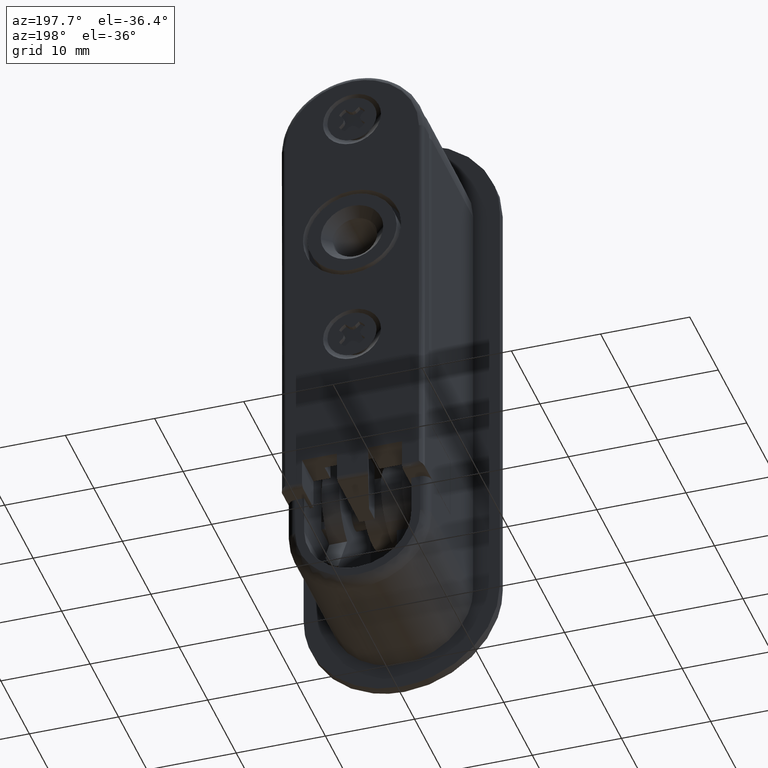
[diagram: clean part render]
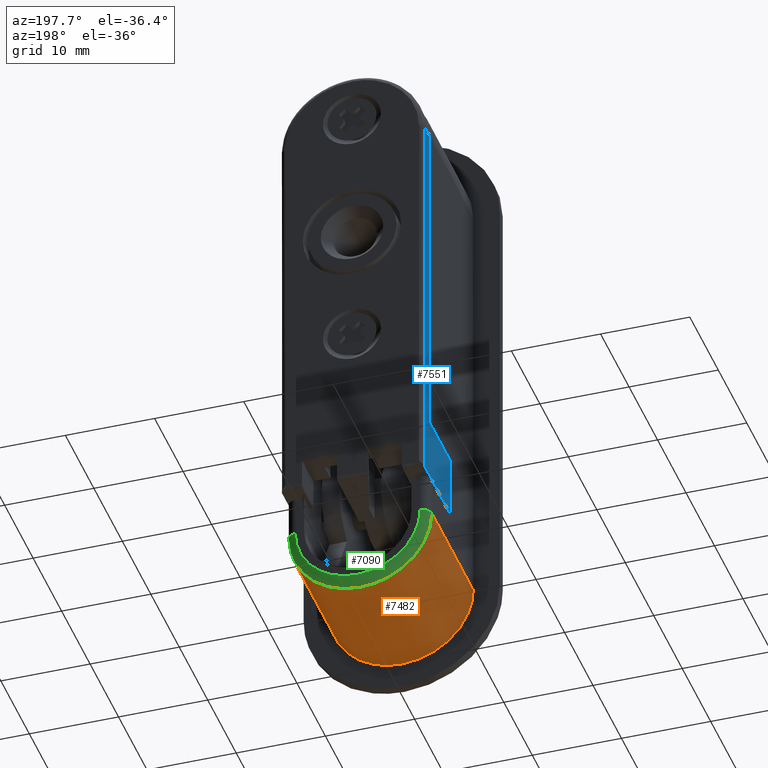
[diagram: same view with three faces highlighted in distinct colors, each labeled with its STEP entity id]
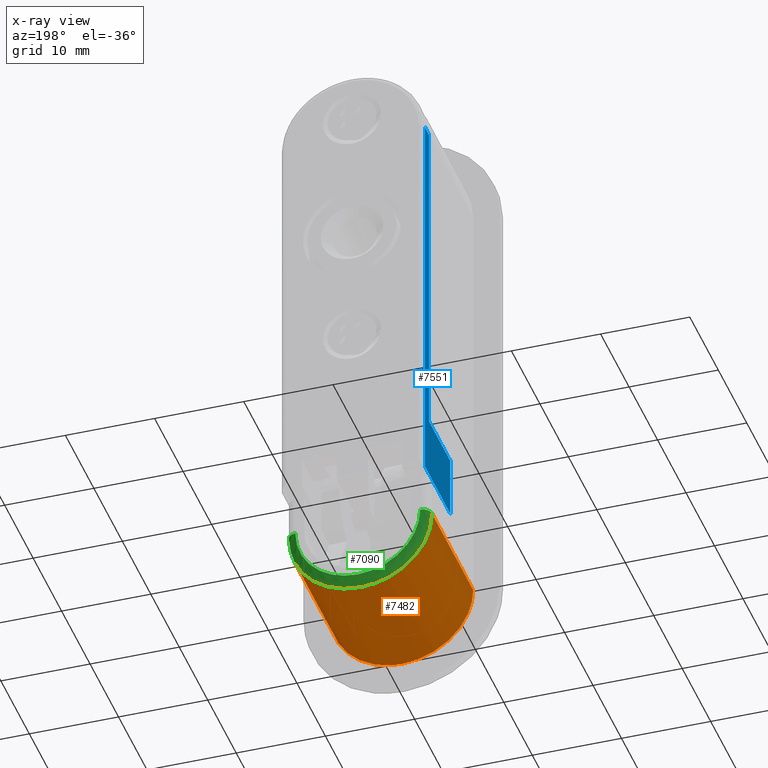
[diagram: x-ray of the same camera — body ghosted, the three highlighted faces saturated]
A machine part, auxiliary view with three faces highlighted in distinct colors.
The next image is the same camera in x-ray (body ghosted, the three faces saturated) — at least one of them is partly hidden behind the body in this view.
Their STEP definitions:

[orange] entity #7482 — the highlighted face is a freeform B-spline surface patch.
#4938=CARTESIAN_POINT('',(7.999999999999770,8.999999999976470,-7.999999999989909));
#4939=VERTEX_POINT('',#4938);
#5870=CARTESIAN_POINT('',(7.999999999999769,-5.499999999979410,-7.999999999989909));
#5871=VERTEX_POINT('',#5870);
#5877=CARTESIAN_POINT('',(7.999999999999770,8.999999999976470,-7.999999999989909));
#5878=CARTESIAN_POINT('',(7.999999999999769,-5.499999999979410,-7.999999999989909));
#5879=QUASI_UNIFORM_CURVE('',1,(#5877,#5878),.UNSPECIFIED.,.F.,.U.);
#5880=EDGE_CURVE('',#4939,#5871,#5879,.T.);
#5941=CARTESIAN_POINT('',(-8.000000000002562,-5.499999999979409,-7.999999999989509));
#5942=VERTEX_POINT('',#5941);
#5948=CARTESIAN_POINT('',(2.555263E-009,-5.499999999979409,-15.999999999989679));
#5949=VERTEX_POINT('',#5948);
#5950=CARTESIAN_POINT('',(2.555263E-009,-5.499999999979409,-15.999999999989679));
#5951=CARTESIAN_POINT('',(-0.392696191003880,-5.499999999979417,-16.000018228220039));
#5952=CARTESIAN_POINT('',(-1.243542607495554,-5.499999999979405,-15.937241482479211));
#5953=CARTESIAN_POINT('',(-2.457915600246298,-5.499999999979410,-15.648877386963550));
#5954=CARTESIAN_POINT('',(-3.549281570217420,-5.499999999979408,-15.196766912245160));
#5955=CARTESIAN_POINT('',(-4.625728468280585,-5.499999999979386,-14.569455354418650));
#5956=CARTESIAN_POINT('',(-5.642474683520280,-5.499999999979421,-13.735040012082051));
#5957=CARTESIAN_POINT('',(-6.636414121436449,-5.499999999979445,-12.553809168403490));
#5958=CARTESIAN_POINT('',(-7.310168075535778,-5.499999999979334,-11.347253619508290));
#5959=CARTESIAN_POINT('',(-7.853148609524454,-5.499999999979520,-9.799740238691614));
#5960=CARTESIAN_POINT('',(-8.000282860848834,-5.499999999979337,-8.719984270569936));
#5961=CARTESIAN_POINT('',(-8.000000000002562,-5.499999999979409,-7.999999999989509));
#5962=B_SPLINE_CURVE_WITH_KNOTS('',3,(#5950,#5951,#5952,#5953,#5954,#5955,#5956,#5957,#5958,#5959,#5960,#5961),.UNSPECIFIED.,.F.,.U.,(4,1,1,1,1,1,1,1,1,4),(0.000000021317030,1.178095038869616,2.552560406980430,3.730670184793175,4.712433635873985,6.283224744091799,7.657664915824316,9.326661496953975,10.406599643651051,12.566449464443391),.UNSPECIFIED.);
#5963=EDGE_CURVE('',#5949,#5942,#5962,.T.);
#5965=CARTESIAN_POINT('',(7.999999999999769,-5.499999999979410,-7.999999999989909));
#5966=CARTESIAN_POINT('',(8.000270937337850,-5.499999999979405,-8.719982732890124));
#5967=CARTESIAN_POINT('',(7.866554428511551,-5.499999999979419,-9.701587383563755));
#5968=CARTESIAN_POINT('',(7.434832306560348,-5.499999999979407,-11.008231206909681));
#5969=CARTESIAN_POINT('',(6.957861731212261,-5.499999999979404,-12.016810585790260));
#5970=CARTESIAN_POINT('',(6.326061762850588,-5.499999999979439,-12.937664944688599));
#5971=CARTESIAN_POINT('',(5.577942118721508,-5.499999999979367,-13.763063574412760));
#5972=CARTESIAN_POINT('',(4.733175133574169,-5.499999999979422,-14.491802728335770));
#5973=CARTESIAN_POINT('',(3.558720420921381,-5.499999999979542,-15.215518496667841));
#5974=CARTESIAN_POINT('',(1.963385233993530,-5.499999999979280,-15.830945930178350));
#5975=CARTESIAN_POINT('',(0.719971252035029,-5.499999999979463,-16.000255116828850));
#5976=CARTESIAN_POINT('',(2.555263E-009,-5.499999999979409,-15.999999999989679));
#5977=B_SPLINE_CURVE_WITH_KNOTS('',3,(#5965,#5966,#5967,#5968,#5969,#5970,#5971,#5972,#5973,#5974,#5975,#5976),.UNSPECIFIED.,.F.,.U.,(4,1,1,1,1,1,1,1,1,4),(0.000000021317176,2.159849362063106,2.945260475573445,4.123367280659872,5.497841693797952,6.283224740226188,7.461309067020115,8.835778345080653,10.406599641264201,12.566449461561209),.UNSPECIFIED.);
#5978=EDGE_CURVE('',#5871,#5949,#5977,.T.);
#7008=CARTESIAN_POINT('',(-8.000000000002562,8.999999999976470,-7.999999999989509));
#7009=VERTEX_POINT('',#7008);
#7053=CARTESIAN_POINT('',(-2.555922E-009,8.999999999976470,-15.999999999989690));
#7054=VERTEX_POINT('',#7053);
#7055=CARTESIAN_POINT('',(-2.555922E-009,8.999999999976470,-15.999999999989690));
#7056=CARTESIAN_POINT('',(0.654512090067644,8.999999999976481,-16.000174078437549));
#7057=CARTESIAN_POINT('',(1.767069419562451,8.999999999976442,-15.862653088428351));
#7058=CARTESIAN_POINT('',(3.257924133621903,8.999999999976506,-15.349749274974339));
#7059=CARTESIAN_POINT('',(4.466498220475898,8.999999999976438,-14.684571944558771));
#7060=CARTESIAN_POINT('',(5.440934746104221,8.999999999976406,-13.904631817041251));
#7061=CARTESIAN_POINT('',(6.288900308331958,8.999999999976556,-12.991838821747640));
#7062=CARTESIAN_POINT('',(7.013619937785534,8.999999999976414,-11.935565945968520));
#7063=CARTESIAN_POINT('',(7.553686107653793,8.999999999976522,-10.737068009844300));
#7064=CARTESIAN_POINT('',(7.912921371653288,8.999999999976387,-9.407141701943592));
#7065=CARTESIAN_POINT('',(8.000074219070728,8.999999999976554,-8.523601867772891));
#7066=CARTESIAN_POINT('',(7.999999999999770,8.999999999976470,-7.999999999989909));
#7067=B_SPLINE_CURVE_WITH_KNOTS('',3,(#7055,#7056,#7057,#7058,#7059,#7060,#7061,#7062,#7063,#7064,#7065,#7066),.UNSPECIFIED.,.F.,.U.,(4,1,1,1,1,1,1,1,1,4),(0.000000021319105,1.963494905487609,3.337965809458085,4.712433635874604,6.086880554710028,7.068604226843618,8.443074571864807,9.915719064153507,10.995651818286920,12.566449464441980),.UNSPECIFIED.);
#7068=EDGE_CURVE('',#7054,#4939,#7067,.T.);
#7070=CARTESIAN_POINT('',(-8.000000000002562,8.999999999976470,-7.999999999989509));
#7071=CARTESIAN_POINT('',(-8.000017497024173,8.999999999976488,-8.392695526102104));
#7072=CARTESIAN_POINT('',(-7.937242066036826,8.999999999976426,-9.243543083804678));
#7073=CARTESIAN_POINT('',(-7.648877189230562,8.999999999976527,-10.457915716563420));
#7074=CARTESIAN_POINT('',(-7.196766332365496,8.999999999976422,-11.549280121375981));
#7075=CARTESIAN_POINT('',(-6.569459149769776,8.999999999976485,-12.625735991429231));
#7076=CARTESIAN_POINT('',(-5.776751480957482,8.999999999976525,-13.591618331793439));
#7077=CARTESIAN_POINT('',(-4.708327436650913,8.999999999976453,-14.513232684442061));
#7078=CARTESIAN_POINT('',(-3.416513935862581,8.999999999976412,-15.298481649348410));
#7079=CARTESIAN_POINT('',(-1.799851941057517,8.999999999976469,-15.865715684617101));
#7080=CARTESIAN_POINT('',(-0.589052077993753,8.999999999976481,-16.000084266143158));
#7081=CARTESIAN_POINT('',(-2.555922E-009,8.999999999976470,-15.999999999989690));
#7082=B_SPLINE_CURVE_WITH_KNOTS('',3,(#7070,#7071,#7072,#7073,#7074,#7075,#7076,#7077,#7078,#7079,#7080,#7081),.UNSPECIFIED.,.F.,.U.,(4,1,1,1,1,1,1,1,1,4),(0.000000021314655,1.178095038597133,2.552560406393168,3.730670183936610,4.712433634792197,6.283224740227682,7.461309067020798,8.933955149311718,10.799293413855599,12.566449461562661),.UNSPECIFIED.);
#7083=EDGE_CURVE('',#7009,#7054,#7082,.T.);
#7452=CARTESIAN_POINT('',(7.997258599804225,9.362499999975368,-7.790584413526918));
#7453=CARTESIAN_POINT('',(7.997258599804225,-5.871562499978279,-7.790584413526918));
#7454=CARTESIAN_POINT('',(8.216016975354119,9.362499999975368,-16.144629734097066));
#7455=CARTESIAN_POINT('',(8.216016975354119,-5.871562499978278,-16.144629734097066));
#7456=CARTESIAN_POINT('',(-0.139619251498250,9.362499999975368,-15.998781561240801));
#7457=CARTESIAN_POINT('',(-0.139619251498251,-5.871562499978278,-15.998781561240801));
#7458=CARTESIAN_POINT('',(-8.495255478350620,9.362499999975368,-15.852933388384539));
#7459=CARTESIAN_POINT('',(-8.495255478350620,-5.871562499978277,-15.852933388384539));
#7460=CARTESIAN_POINT('',(-7.985078387374701,9.362499999975368,-7.511611683711082));
#7461=CARTESIAN_POINT('',(-7.985078387374702,-5.871562499978277,-7.511611683711082));
#7469=(BOUNDED_SURFACE()B_SPLINE_SURFACE(1,2,((#7452,#7454,#7456,#7458,#7460),(#7453,#7455,#7457,#7459,#7461)),.UNSPECIFIED.,.F.,.F.,.U.)B_SPLINE_SURFACE_WITH_KNOTS((2,2),(3,2,3),(0.0,15.234062499953650),(0.0,13.665662648534081,27.331325297068162),.UNSPECIFIED.)GEOMETRIC_REPRESENTATION_ITEM()RATIONAL_B_SPLINE_SURFACE(((1.0,0.691513055782269,1.0,0.691513055782269,1.0),(1.0,0.691513055782269,1.0,0.691513055782269,1.0)))REPRESENTATION_ITEM('')SURFACE());
#7470=CARTESIAN_POINT('',(-8.000000000002562,8.999999999976470,-7.999999999989509));
#7471=CARTESIAN_POINT('',(-8.000000000002562,-5.499999999979409,-7.999999999989509));
#7472=QUASI_UNIFORM_CURVE('',1,(#7470,#7471),.UNSPECIFIED.,.F.,.U.);
#7473=EDGE_CURVE('',#7009,#5942,#7472,.T.);
#7474=ORIENTED_EDGE('',*,*,#7473,.F.);
#7475=ORIENTED_EDGE('',*,*,#7083,.T.);
#7476=ORIENTED_EDGE('',*,*,#7068,.T.);
#7477=ORIENTED_EDGE('',*,*,#5880,.T.);
#7478=ORIENTED_EDGE('',*,*,#5978,.T.);
#7479=ORIENTED_EDGE('',*,*,#5963,.T.);
#7480=EDGE_LOOP('',(#7474,#7475,#7476,#7477,#7478,#7479));
#7481=FACE_OUTER_BOUND('',#7480,.T.);
#7482=ADVANCED_FACE('',(#7481),#7469,.T.);

[blue] entity #7551 — the highlighted face is a freeform B-spline surface patch.
#6827=CARTESIAN_POINT('',(-8.000000000002331,11.500000000049241,-3.500000000459210));
#6828=VERTEX_POINT('',#6827);
#6905=CARTESIAN_POINT('',(-7.999999999999768,11.500000000049241,41.500000000014012));
#6906=VERTEX_POINT('',#6905);
#6971=CARTESIAN_POINT('',(-7.999999999999768,11.500000000049241,41.500000000014012));
#6972=CARTESIAN_POINT('',(-8.000000000002331,11.500000000049241,-3.500000000459210));
#6973=QUASI_UNIFORM_CURVE('',1,(#6971,#6972),.UNSPECIFIED.,.F.,.U.);
#6974=EDGE_CURVE('',#6906,#6828,#6973,.T.);
#7288=CARTESIAN_POINT('',(-7.999999999999560,2.549999999976480,3.499999999487161));
#7289=VERTEX_POINT('',#7288);
#7290=CARTESIAN_POINT('',(-7.999999999999559,9.999999999976490,3.499999999487161));
#7291=VERTEX_POINT('',#7290);
#7292=CARTESIAN_POINT('',(-7.999999999999560,2.549999999976480,3.499999999487161));
#7293=CARTESIAN_POINT('',(-7.999999999999559,9.999999999976490,3.499999999487161));
#7294=QUASI_UNIFORM_CURVE('',1,(#7292,#7293),.UNSPECIFIED.,.F.,.U.);
#7295=EDGE_CURVE('',#7289,#7291,#7294,.T.);
#7389=CARTESIAN_POINT('',(-7.999999999999569,9.999999999976490,41.500000000019249));
#7390=VERTEX_POINT('',#7389);
#7406=CARTESIAN_POINT('',(-7.999999999999559,9.999999999976490,3.499999999487161));
#7407=CARTESIAN_POINT('',(-7.999999999999569,9.999999999976490,41.500000000019249));
#7408=QUASI_UNIFORM_CURVE('',1,(#7406,#7407),.UNSPECIFIED.,.F.,.U.);
#7409=EDGE_CURVE('',#7291,#7390,#7408,.T.);
#7433=CARTESIAN_POINT('',(-7.999999999999560,2.549999999976480,-3.500000000510030));
#7434=VERTEX_POINT('',#7433);
#7440=CARTESIAN_POINT('',(-8.000000000002331,11.500000000049241,-3.500000000459210));
#7441=CARTESIAN_POINT('',(-7.999999999999560,2.549999999976480,-3.500000000510030));
#7442=QUASI_UNIFORM_CURVE('',1,(#7440,#7441),.UNSPECIFIED.,.F.,.U.);
#7443=EDGE_CURVE('',#6828,#7434,#7442,.T.);
#7524=CARTESIAN_POINT('',(-7.999999999999768,11.500000000049241,41.500000000014012));
#7525=CARTESIAN_POINT('',(-7.999999999999569,9.999999999976490,41.500000000019249));
#7526=QUASI_UNIFORM_CURVE('',1,(#7524,#7525),.UNSPECIFIED.,.F.,.U.);
#7527=EDGE_CURVE('',#6906,#7390,#7526,.T.);
#7534=CARTESIAN_POINT('',(-8.0,2.102947517319683,-5.747749913317739));
#7535=CARTESIAN_POINT('',(-8.0,2.102947517319683,43.747751119821011));
#7536=CARTESIAN_POINT('',(-7.999999999999999,11.947052722763750,-5.747749913317739));
#7537=CARTESIAN_POINT('',(-7.999999999999999,11.947052722763750,43.747751119821011));
#7538=B_SPLINE_SURFACE_WITH_KNOTS('',1,1,((#7534,#7536),(#7535,#7537)),.UNSPECIFIED.,.F.,.F.,.U.,(2,2),(2,2),(0.0,49.495501033138751),(0.0,9.844105205444064),.UNSPECIFIED.);
#7539=ORIENTED_EDGE('',*,*,#7527,.F.);
#7540=ORIENTED_EDGE('',*,*,#6974,.T.);
#7541=ORIENTED_EDGE('',*,*,#7443,.T.);
#7542=CARTESIAN_POINT('',(-7.999999999999560,2.549999999976480,-3.500000000510030));
#7543=CARTESIAN_POINT('',(-7.999999999999560,2.549999999976480,3.499999999487161));
#7544=QUASI_UNIFORM_CURVE('',1,(#7542,#7543),.UNSPECIFIED.,.F.,.U.);
#7545=EDGE_CURVE('',#7434,#7289,#7544,.T.);
#7546=ORIENTED_EDGE('',*,*,#7545,.T.);
#7547=ORIENTED_EDGE('',*,*,#7295,.T.);
#7548=ORIENTED_EDGE('',*,*,#7409,.T.);
#7549=EDGE_LOOP('',(#7539,#7540,#7541,#7546,#7547,#7548));
#7550=FACE_OUTER_BOUND('',#7549,.T.);
#7551=ADVANCED_FACE('',(#7550),#7538,.T.);

[green] entity #7090 — the highlighted face is a freeform B-spline surface patch.
#4938=CARTESIAN_POINT('',(7.999999999999770,8.999999999976470,-7.999999999989909));
#4939=VERTEX_POINT('',#4938);
#4945=CARTESIAN_POINT('',(6.999999999999771,9.999999999976490,-7.999999999989899));
#4946=VERTEX_POINT('',#4945);
#4947=CARTESIAN_POINT('',(6.999999999999771,9.999999999976490,-7.999999999989899));
#4948=CARTESIAN_POINT('',(7.098177853527796,10.000035730440340,-7.999999999989905));
#4949=CARTESIAN_POINT('',(7.286316729900453,9.972065003132787,-7.999999999989879));
#4950=CARTESIAN_POINT('',(7.564089929046855,9.844913926574893,-7.999999999989902));
#4951=CARTESIAN_POINT('',(7.773220879554256,9.655338482960659,-7.999999999989903));
#4952=CARTESIAN_POINT('',(7.950266485512358,9.367980133971740,-7.999999999989907));
#4953=CARTESIAN_POINT('',(8.000239999930210,9.147317683061964,-7.999999999989879));
#4954=CARTESIAN_POINT('',(7.999999999999770,8.999999999976470,-7.999999999989909));
#4955=B_SPLINE_CURVE_WITH_KNOTS('',3,(#4947,#4948,#4949,#4950,#4951,#4952,#4953,#4954),.UNSPECIFIED.,.F.,.U.,(4,1,1,1,1,4),(0.000000190628016,0.294528441957316,0.564522260793257,0.908118807690723,1.129035748214577,1.570835744372082),.UNSPECIFIED.);
#4956=EDGE_CURVE('',#4946,#4939,#4955,.T.);
#6255=CARTESIAN_POINT('',(-6.999999999999769,9.999999999976490,-7.999999999989559));
#6256=VERTEX_POINT('',#6255);
#6275=CARTESIAN_POINT('',(-0.000001188549257,9.999999999976490,-14.999999999989580));
#6276=VERTEX_POINT('',#6275);
#6277=CARTESIAN_POINT('',(6.999999999999771,9.999999999976490,-7.999999999989899));
#6278=CARTESIAN_POINT('',(7.000080155661106,9.999999999976490,-8.486784304879608));
#6279=CARTESIAN_POINT('',(6.910014448365844,9.999999999976485,-9.345782759791909));
#6280=CARTESIAN_POINT('',(6.599558798235221,9.999999999976495,-10.392270246838139));
#6281=CARTESIAN_POINT('',(6.192914535823788,9.999999999976488,-11.309599498351259));
#6282=CARTESIAN_POINT('',(5.574877741775490,9.999999999976506,-12.312869103655620));
#6283=CARTESIAN_POINT('',(4.646584648733772,9.999999999976463,-13.299885868833931));
#6284=CARTESIAN_POINT('',(3.542161631572934,9.999999999976492,-14.077638933542600));
#6285=CARTESIAN_POINT('',(2.502917591256573,9.999999999976589,-14.569144862948811));
#6286=CARTESIAN_POINT('',(1.317149320330290,9.999999999976243,-14.913014397793541));
#6287=CARTESIAN_POINT('',(0.486788287790740,9.999999999976646,-15.000079310766230));
#6288=CARTESIAN_POINT('',(-0.000001188549257,9.999999999976490,-14.999999999989580));
#6289=B_SPLINE_CURVE_WITH_KNOTS('',3,(#6277,#6278,#6279,#6280,#6281,#6282,#6283,#6284,#6285,#6286,#6287,#6288),.UNSPECIFIED.,.F.,.U.,(4,1,1,1,1,1,1,1,1,4),(0.000000042970399,1.460345483683160,2.577104047723056,3.264332624525364,4.466997765747707,6.099127467627447,7.301782841965929,8.504446498810895,9.535285665179941,10.995643950016420),.UNSPECIFIED.);
#6290=EDGE_CURVE('',#4946,#6276,#6289,.T.);
#6292=CARTESIAN_POINT('',(-0.000001188549257,9.999999999976490,-14.999999999989580));
#6293=CARTESIAN_POINT('',(-0.343604549791269,9.999999999976497,-15.000008641284680));
#6294=CARTESIAN_POINT('',(-1.116735879321909,9.999999999976495,-14.942994501298889));
#6295=CARTESIAN_POINT('',(-2.066562935227602,9.999999999976483,-14.711263608595811));
#6296=CARTESIAN_POINT('',(-3.026924017464470,9.999999999976513,-14.334002031667410));
#6297=CARTESIAN_POINT('',(-3.983746088396579,9.999999999976499,-13.807466685560300));
#6298=CARTESIAN_POINT('',(-4.935844817787912,9.999999999976502,-13.016214655258681));
#6299=CARTESIAN_POINT('',(-5.767712656605231,9.999999999976486,-12.027583002295930));
#6300=CARTESIAN_POINT('',(-6.347229797012709,9.999999999976463,-11.033236631911700));
#6301=CARTESIAN_POINT('',(-6.857438704945102,9.999999999976559,-9.660654925225691));
#6302=CARTESIAN_POINT('',(-7.000288978767987,9.999999999976355,-8.658625969696422));
#6303=CARTESIAN_POINT('',(-6.999999999999769,9.999999999976490,-7.999999999989559));
#6304=B_SPLINE_CURVE_WITH_KNOTS('',3,(#6292,#6293,#6294,#6295,#6296,#6297,#6298,#6299,#6300,#6301,#6302,#6303),.UNSPECIFIED.,.F.,.U.,(4,1,1,1,1,1,1,1,1,4),(0.000000043383650,1.030820453426054,2.319388483430119,2.920720045291827,4.123378517314197,5.583712937224905,6.614545928368666,7.989018475071351,9.019869707549837,10.995642610236230),.UNSPECIFIED.);
#6305=EDGE_CURVE('',#6276,#6256,#6304,.T.);
#7008=CARTESIAN_POINT('',(-8.000000000002562,8.999999999976470,-7.999999999989509));
#7009=VERTEX_POINT('',#7008);
#7010=CARTESIAN_POINT('',(-6.999999999999769,9.999999999976490,-7.999999999989559));
#7011=CARTESIAN_POINT('',(-7.147297749045944,10.000220969300971,-7.999999999989566));
#7012=CARTESIAN_POINT('',(-7.400737036693896,9.942926432228969,-7.999999999989561));
#7013=CARTESIAN_POINT('',(-7.680834437208341,9.750685585148071,-7.999999999989568));
#7014=CARTESIAN_POINT('',(-7.858621455480064,9.534020727040124,-7.999999999989530));
#7015=CARTESIAN_POINT('',(-7.972073160983316,9.286323800513113,-7.999999999989595));
#7016=CARTESIAN_POINT('',(-8.000035595948171,9.098177355118825,-7.999999999989417));
#7017=CARTESIAN_POINT('',(-8.000000000002562,8.999999999976470,-7.999999999989509));
#7018=B_SPLINE_CURVE_WITH_KNOTS('',3,(#7010,#7011,#7012,#7013,#7014,#7015,#7016,#7017),.UNSPECIFIED.,.F.,.U.,(4,1,1,1,1,4),(0.000000190627593,0.441800186786111,0.760901554984613,1.006313674209056,1.276307493045632,1.570835744375640),.UNSPECIFIED.);
#7019=EDGE_CURVE('',#6256,#7009,#7018,.T.);
#7029=CARTESIAN_POINT('',(7.917208171920918,8.930462845063795,-6.869031203448642));
#7030=CARTESIAN_POINT('',(9.221216213794653,8.930462845063794,-15.997579362289560));
#7031=CARTESIAN_POINT('',(1.526204E-015,8.930462845063794,-15.997579362289562));
#7032=CARTESIAN_POINT('',(-9.221216320074589,8.930462845063799,-15.997579362289569));
#7033=CARTESIAN_POINT('',(-7.917208159016835,8.930462845063797,-6.869031113115184));
#7034=CARTESIAN_POINT('',(7.996362474216253,10.077537166202550,-6.857724055264071));
#7035=CARTESIAN_POINT('',(9.313407668139121,10.077537166202548,-16.077537196001643));
#7036=CARTESIAN_POINT('',(1.606231E-015,10.077537166202548,-16.077537196001646));
#7037=CARTESIAN_POINT('',(-9.313407775481624,10.077537166202553,-16.077537196001654));
#7038=CARTESIAN_POINT('',(-7.996362461183151,10.077537166202543,-6.857723964027478));
#7039=CARTESIAN_POINT('',(6.860815604943555,9.997579364198545,-7.019936295774850));
#7040=CARTESIAN_POINT('',(7.990829939338468,9.997579364198543,-14.930462872652653));
#7041=CARTESIAN_POINT('',(1.460864E-015,9.997579364198543,-14.930462872652658));
#7042=CARTESIAN_POINT('',(-7.990830031437477,9.997579364198542,-14.930462872652653));
#7043=CARTESIAN_POINT('',(-6.860815593761260,9.997579364198543,-7.019936217494579));
#7051=(BOUNDED_SURFACE()B_SPLINE_SURFACE(2,2,((#7029,#7034,#7039),(#7030,#7035,#7040),(#7031,#7036,#7041),(#7032,#7037,#7042),(#7033,#7038,#7043)),.UNSPECIFIED.,.F.,.F.,.U.)B_SPLINE_SURFACE_WITH_KNOTS((3,2,3),(3,3),(0.0,14.600639215986670,29.201278541850240),(0.0,1.822373989114815),.UNSPECIFIED.)GEOMETRIC_REPRESENTATION_ITEM()RATIONAL_B_SPLINE_SURFACE(((0.912907160658269,0.599072450715862,0.912907149161323),(0.600218009466129,0.393878029870412,0.600218001907120),(0.919258316275454,0.603240237457421,0.919258304698524),(0.600218007065196,0.393878028294860,0.600217999506187),(0.912907165364544,0.599072453804238,0.912907153867599)))REPRESENTATION_ITEM('')SURFACE());
#7052=ORIENTED_EDGE('',*,*,#4956,.T.);
#7053=CARTESIAN_POINT('',(-2.555922E-009,8.999999999976470,-15.999999999989690));
#7054=VERTEX_POINT('',#7053);
#7055=CARTESIAN_POINT('',(-2.555922E-009,8.999999999976470,-15.999999999989690));
#7056=CARTESIAN_POINT('',(0.654512090067644,8.999999999976481,-16.000174078437549));
#7057=CARTESIAN_POINT('',(1.767069419562451,8.999999999976442,-15.862653088428351));
#7058=CARTESIAN_POINT('',(3.257924133621903,8.999999999976506,-15.349749274974339));
#7059=CARTESIAN_POINT('',(4.466498220475898,8.999999999976438,-14.684571944558771));
#7060=CARTESIAN_POINT('',(5.440934746104221,8.999999999976406,-13.904631817041251));
#7061=CARTESIAN_POINT('',(6.288900308331958,8.999999999976556,-12.991838821747640));
#7062=CARTESIAN_POINT('',(7.013619937785534,8.999999999976414,-11.935565945968520));
#7063=CARTESIAN_POINT('',(7.553686107653793,8.999999999976522,-10.737068009844300));
#7064=CARTESIAN_POINT('',(7.912921371653288,8.999999999976387,-9.407141701943592));
#7065=CARTESIAN_POINT('',(8.000074219070728,8.999999999976554,-8.523601867772891));
#7066=CARTESIAN_POINT('',(7.999999999999770,8.999999999976470,-7.999999999989909));
#7067=B_SPLINE_CURVE_WITH_KNOTS('',3,(#7055,#7056,#7057,#7058,#7059,#7060,#7061,#7062,#7063,#7064,#7065,#7066),.UNSPECIFIED.,.F.,.U.,(4,1,1,1,1,1,1,1,1,4),(0.000000021319105,1.963494905487609,3.337965809458085,4.712433635874604,6.086880554710028,7.068604226843618,8.443074571864807,9.915719064153507,10.995651818286920,12.566449464441980),.UNSPECIFIED.);
#7068=EDGE_CURVE('',#7054,#4939,#7067,.T.);
#7069=ORIENTED_EDGE('',*,*,#7068,.F.);
#7070=CARTESIAN_POINT('',(-8.000000000002562,8.999999999976470,-7.999999999989509));
#7071=CARTESIAN_POINT('',(-8.000017497024173,8.999999999976488,-8.392695526102104));
#7072=CARTESIAN_POINT('',(-7.937242066036826,8.999999999976426,-9.243543083804678));
#7073=CARTESIAN_POINT('',(-7.648877189230562,8.999999999976527,-10.457915716563420));
#7074=CARTESIAN_POINT('',(-7.196766332365496,8.999999999976422,-11.549280121375981));
#7075=CARTESIAN_POINT('',(-6.569459149769776,8.999999999976485,-12.625735991429231));
#7076=CARTESIAN_POINT('',(-5.776751480957482,8.999999999976525,-13.591618331793439));
#7077=CARTESIAN_POINT('',(-4.708327436650913,8.999999999976453,-14.513232684442061));
#7078=CARTESIAN_POINT('',(-3.416513935862581,8.999999999976412,-15.298481649348410));
#7079=CARTESIAN_POINT('',(-1.799851941057517,8.999999999976469,-15.865715684617101));
#7080=CARTESIAN_POINT('',(-0.589052077993753,8.999999999976481,-16.000084266143158));
#7081=CARTESIAN_POINT('',(-2.555922E-009,8.999999999976470,-15.999999999989690));
#7082=B_SPLINE_CURVE_WITH_KNOTS('',3,(#7070,#7071,#7072,#7073,#7074,#7075,#7076,#7077,#7078,#7079,#7080,#7081),.UNSPECIFIED.,.F.,.U.,(4,1,1,1,1,1,1,1,1,4),(0.000000021314655,1.178095038597133,2.552560406393168,3.730670183936610,4.712433634792197,6.283224740227682,7.461309067020798,8.933955149311718,10.799293413855599,12.566449461562661),.UNSPECIFIED.);
#7083=EDGE_CURVE('',#7009,#7054,#7082,.T.);
#7084=ORIENTED_EDGE('',*,*,#7083,.F.);
#7085=ORIENTED_EDGE('',*,*,#7019,.F.);
#7086=ORIENTED_EDGE('',*,*,#6305,.F.);
#7087=ORIENTED_EDGE('',*,*,#6290,.F.);
#7088=EDGE_LOOP('',(#7052,#7069,#7084,#7085,#7086,#7087));
#7089=FACE_OUTER_BOUND('',#7088,.T.);
#7090=ADVANCED_FACE('',(#7089),#7051,.T.);